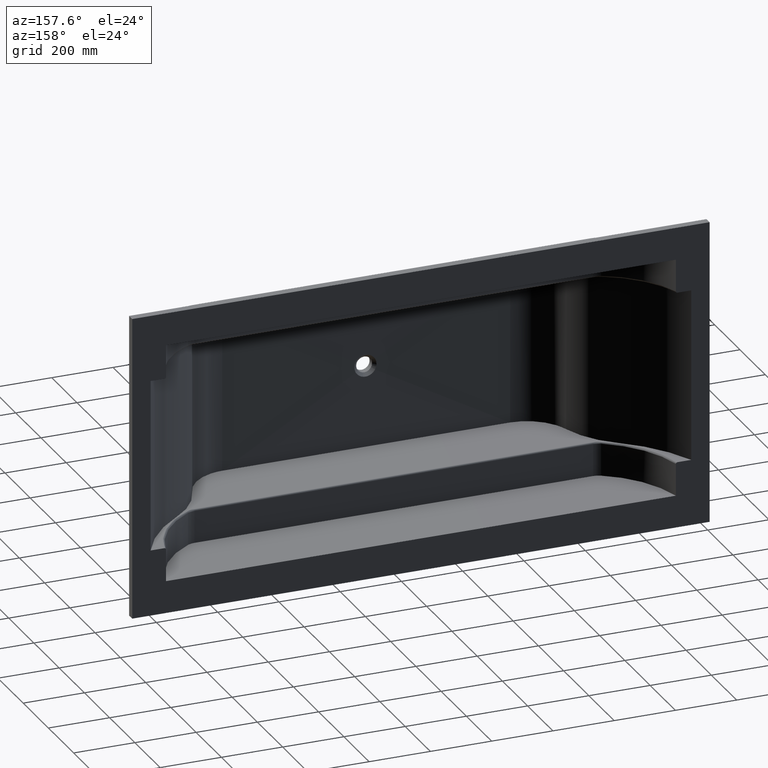
[diagram: clean part render]
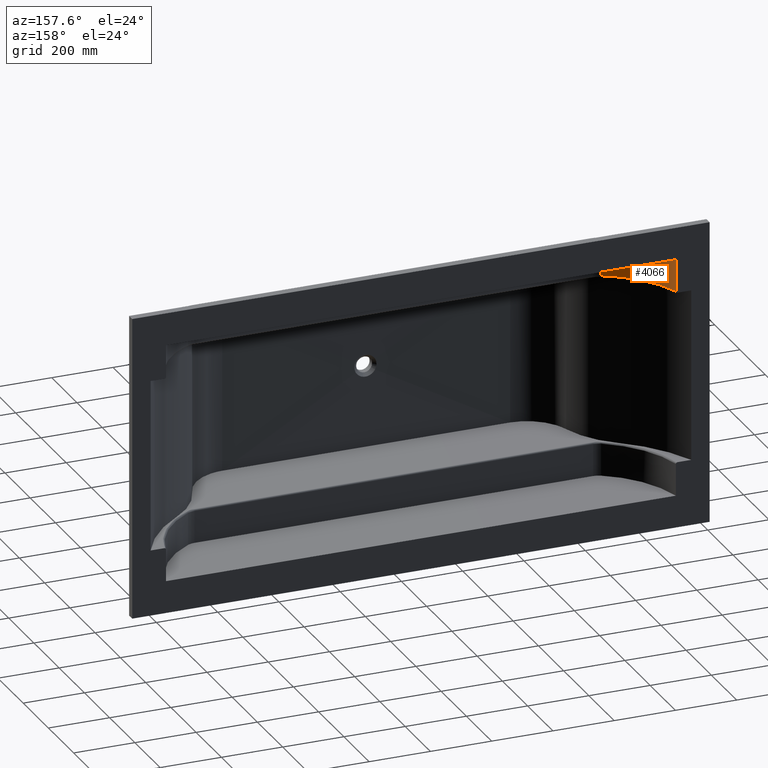
[diagram: same view with one face highlighted and labeled with its STEP entity id]
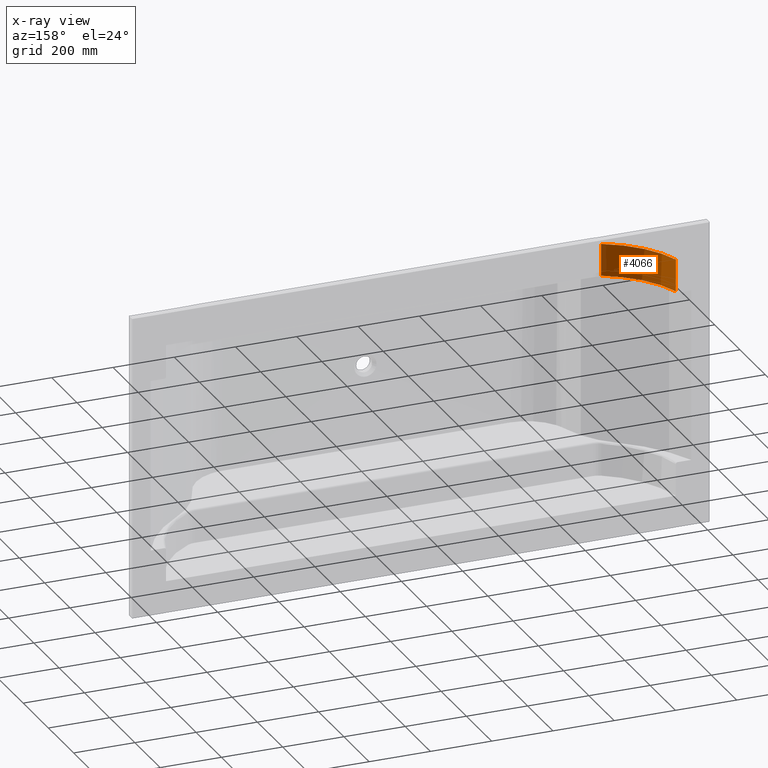
[diagram: x-ray of the same camera — body ghosted, the highlighted face saturated]
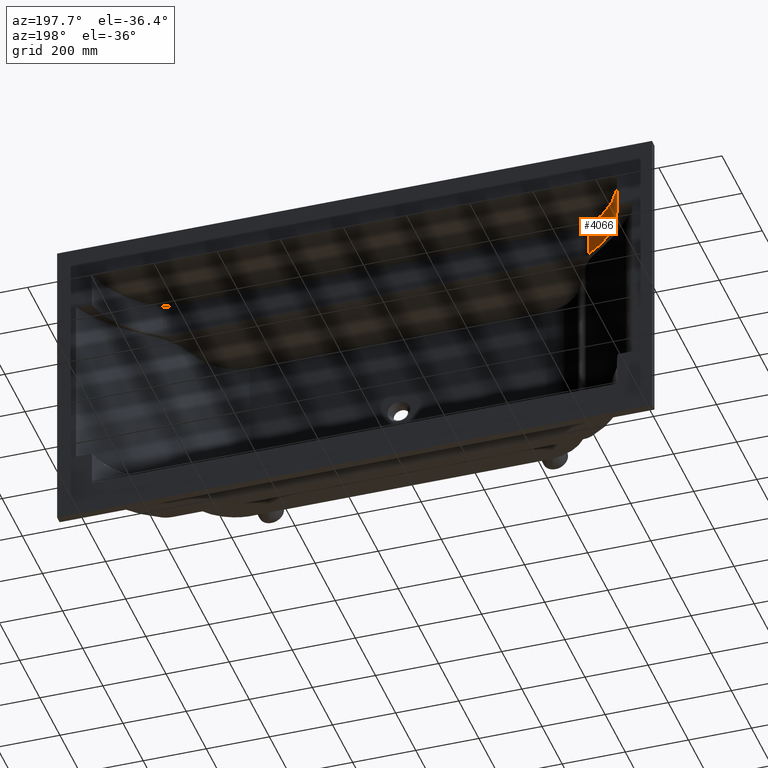
[diagram: same view with one face highlighted and labeled with its STEP entity id]
A machine part, auxiliary view. The second image highlights one B-rep face of the part: STEP entity #4066.
The next image is the same camera in x-ray: the body ghosted, the highlighted face saturated — about 6% of this face is hidden behind the body in this view.
A second angle (auxiliary view) of the same face is appended — the face is thin or edge-on in the first view.
In plain terms, the highlighted cylindrical surface (partial cylindrical patch) has radius 320 mm, axis along (-0, -0, -1).
Its self-contained STEP definition (entity closure, byte-faithful):
#29 = EDGE_CURVE ( 'NONE', #1913, #5574, #5522, .T. ) ;
#478 = AXIS2_PLACEMENT_3D ( 'NONE', #1973, #3519, #2698 ) ;
#501 = EDGE_CURVE ( 'NONE', #754, #1913, #2597, .T. ) ;
#626 = CARTESIAN_POINT ( 'NONE',  ( 268.2080502618736100, -193.8616566472821600, -112.2187208518646900 ) ) ;
#754 = VERTEX_POINT ( 'NONE', #4268 ) ;
#789 = ORIENTED_EDGE ( 'NONE', *, *, #3464, .T. ) ;
#930 = CARTESIAN_POINT ( 'NONE',  ( 110.0000000000024900, 15.00000000000001400, -104.9999999999999900 ) ) ;
#1033 = CARTESIAN_POINT ( 'NONE',  ( 110.0000000000024900, 15.00000000000001400, -104.9999999999999900 ) ) ;
#1035 = CARTESIAN_POINT ( 'NONE',  ( 110.0000000000024900, 15.00000000000001400, -210.0358175992436100 ) ) ;
#1049 = VECTOR ( 'NONE', #1839, 1000.000000000000000 ) ;
#1092 = DIRECTION ( 'NONE',  ( -0.0000000000000000000, -0.0000000000000000000, -1.000000000000000000 ) ) ;
#1264 = FACE_OUTER_BOUND ( 'NONE', #3261, .T. ) ;
#1681 = CARTESIAN_POINT ( 'NONE',  ( 186.8367796541314200, -149.3313420926545200, -110.6796546806217500 ) ) ;
#1807 = CARTESIAN_POINT ( 'NONE',  ( 110.0000000000024900, 15.00000000000001400, -210.0358175992436100 ) ) ;
#1824 = CARTESIAN_POINT ( 'NONE',  ( 186.8367796541314200, -149.3313420926545500, -215.8042168842500800 ) ) ;
#1839 = DIRECTION ( 'NONE',  ( -0.0000000000000000000, -0.0000000000000000000, -1.000000000000000000 ) ) ;
#1913 = VERTEX_POINT ( 'NONE', #3028 ) ;
#1973 = CARTESIAN_POINT ( 'NONE',  ( 421.8287256911478900, 86.85294589532421100, -104.9999999999999900 ) ) ;
#2373 = LINE ( 'NONE', #5631, #1049 ) ;
#2386 = ORIENTED_EDGE ( 'NONE', *, *, #29, .F. ) ;
#2597 =( BOUNDED_CURVE ( )  B_SPLINE_CURVE ( 3, ( #626, #1681, #5374, #1033 ),
 .UNSPECIFIED., .F., .T. ) 
 B_SPLINE_CURVE_WITH_KNOTS ( ( 4, 4 ),
 ( 0.5007283637659577500, 1.344324902397759900 ),
 .UNSPECIFIED. ) 
 CURVE ( )  GEOMETRIC_REPRESENTATION_ITEM ( )  RATIONAL_B_SPLINE_CURVE ( ( 1.000000000000000000, 0.9415694674906430800, 0.9415694674906430800, 1.000000000000000000 ) ) 
 REPRESENTATION_ITEM ( '' )  );
#2687 = CARTESIAN_POINT ( 'NONE',  ( 130.8281487726492600, -75.39038009299966300, -213.2087230064539900 ) ) ;
#2698 = DIRECTION ( 'NONE',  ( -1.000000000000000000, 0.0000000000000000000, 0.0000000000000000000 ) ) ;
#2707 = CARTESIAN_POINT ( 'NONE',  ( 268.2080502618736100, -193.8616566472822700, -217.3673309644186100 ) ) ;
#2846 = CYLINDRICAL_SURFACE ( 'NONE', #478, 320.0000000000000600 ) ;
#2870 = CARTESIAN_POINT ( 'NONE',  ( 268.2080502618736100, -193.8616566472822700, -217.3673309644186100 ) ) ;
#2947 = ORIENTED_EDGE ( 'NONE', *, *, #501, .F. ) ;
#3028 = CARTESIAN_POINT ( 'NONE',  ( 110.0000000000024900, 15.00000000000001400, -104.9999999999999900 ) ) ;
#3052 = ORIENTED_EDGE ( 'NONE', *, *, #4403, .F. ) ;
#3261 = EDGE_LOOP ( 'NONE', ( #2386, #2947, #789, #3052 ) ) ;
#3464 = EDGE_CURVE ( 'NONE', #754, #4687, #2373, .T. ) ;
#3519 = DIRECTION ( 'NONE',  ( -0.0000000000000000000, -0.0000000000000000000, -1.000000000000000000 ) ) ;
#4066 = ADVANCED_FACE ( 'NONE', ( #1264 ), #2846, .F. ) ;
#4268 = CARTESIAN_POINT ( 'NONE',  ( 268.2080502618736100, -193.8616566472821600, -112.2187208518646900 ) ) ;
#4403 = EDGE_CURVE ( 'NONE', #5574, #4687, #4870, .T. ) ;
#4687 = VERTEX_POINT ( 'NONE', #2870 ) ;
#4870 =( BOUNDED_CURVE ( )  B_SPLINE_CURVE ( 3, ( #1807, #2687, #1824, #2707 ),
 .UNSPECIFIED., .F., .F. ) 
 B_SPLINE_CURVE_WITH_KNOTS ( ( 4, 4 ),
 ( 4.938860404781825900, 5.782456943413628800 ),
 .UNSPECIFIED. ) 
 CURVE ( )  GEOMETRIC_REPRESENTATION_ITEM ( )  RATIONAL_B_SPLINE_CURVE ( ( 1.000000000000000000, 0.9415694674906429600, 0.9415694674906429600, 1.000000000000000000 ) ) 
 REPRESENTATION_ITEM ( '' )  );
#5374 = CARTESIAN_POINT ( 'NONE',  ( 130.8281487726494300, -75.39038009299977700, -108.1240914778686600 ) ) ;
#5388 = VECTOR ( 'NONE', #1092, 1000.000000000000000 ) ;
#5522 = LINE ( 'NONE', #930, #5388 ) ;
#5574 = VERTEX_POINT ( 'NONE', #1035 ) ;
#5631 = CARTESIAN_POINT ( 'NONE',  ( 268.2080502618736100, -193.8616566472822700, -104.9999999999999900 ) ) ;